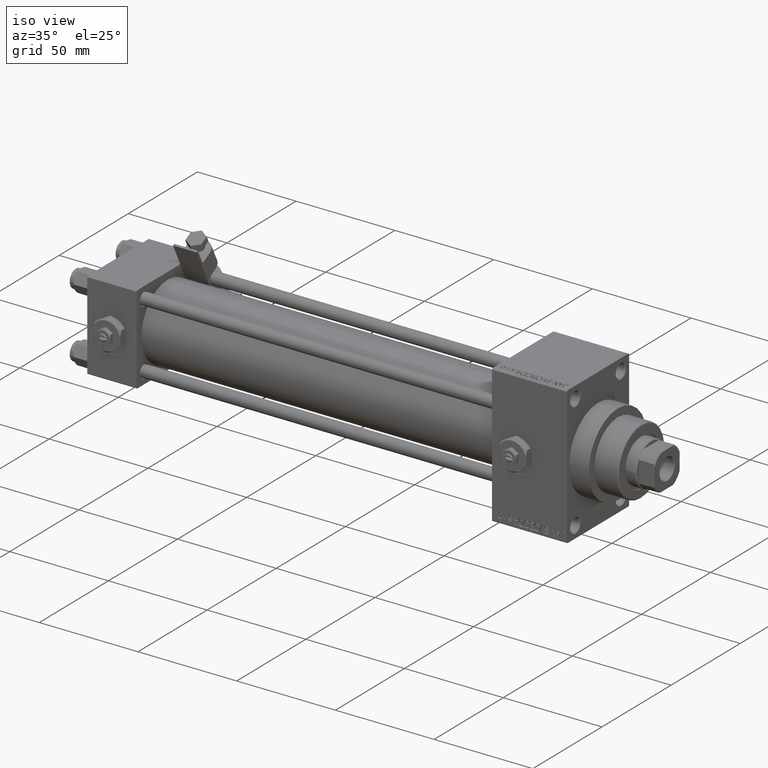
[diagram: clean part render]
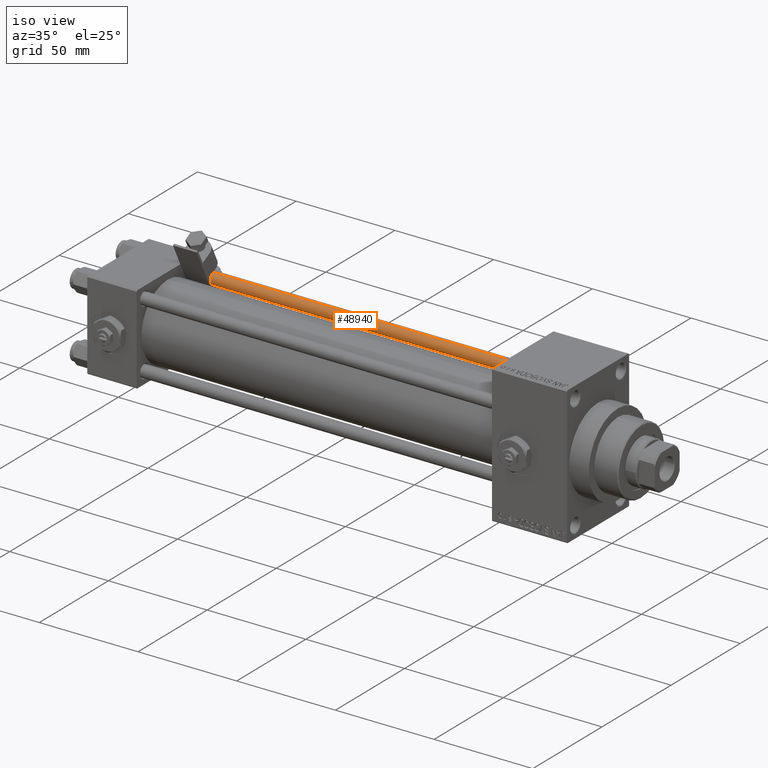
[diagram: same view with one face highlighted and labeled with its STEP entity id]
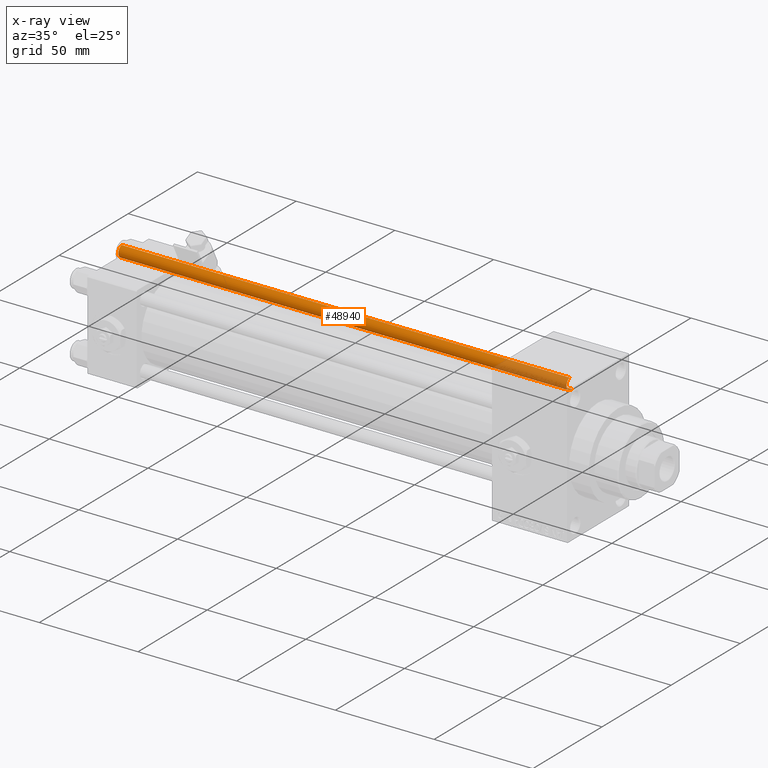
[diagram: x-ray of the same camera — body ghosted, the highlighted face saturated]
A machine part, iso view. The second image highlights one B-rep face of the part: STEP entity #48940.
The next image is the same camera in x-ray: the body ghosted, the highlighted face saturated — about 15% of this face is hidden behind the body in this view.
In plain terms, the highlighted cylindrical surface (edge-blend (fillet) strip) has radius 3 mm, axis along (-1, -0, 0).
Its self-contained STEP definition (entity closure, byte-faithful):
#1281 = CARTESIAN_POINT ( 'NONE',  ( 0.000000000000000000, 0.000000000000000000, 228.0000000000000000 ) ) ;
#1785 = DIRECTION ( 'NONE',  ( -0.000000000000000000, -0.000000000000000000, -1.000000000000000000 ) ) ;
#4986 = EDGE_CURVE ( 'NONE', #5074, #45860, #11930, .T. ) ;
#5074 = VERTEX_POINT ( 'NONE', #19017 ) ;
#8572 = EDGE_CURVE ( 'NONE', #10737, #45860, #24308, .T. ) ;
#9350 = VECTOR ( 'NONE', #41598, 1000.000000000000000 ) ;
#10737 = VERTEX_POINT ( 'NONE', #21495 ) ;
#10773 = CIRCLE ( 'NONE', #18866, 3.000000000000000444 ) ;
#10990 = EDGE_LOOP ( 'NONE', ( #18304, #18775, #12207, #15765 ) ) ;
#11537 = VECTOR ( 'NONE', #27370, 1000.000000000000000 ) ;
#11930 = LINE ( 'NONE', #49717, #11537 ) ;
#12176 = DIRECTION ( 'NONE',  ( 1.000000000000000000, 0.000000000000000000, 0.000000000000000000 ) ) ;
#12207 = ORIENTED_EDGE ( 'NONE', *, *, #27006, .T. ) ;
#13185 = DIRECTION ( 'NONE',  ( -1.000000000000000000, 0.000000000000000000, 0.000000000000000000 ) ) ;
#15483 = CARTESIAN_POINT ( 'NONE',  ( -3.000000000000000444, 0.000000000000000000, 228.0000000000000000 ) ) ;
#15765 = ORIENTED_EDGE ( 'NONE', *, *, #8572, .T. ) ;
#18304 = ORIENTED_EDGE ( 'NONE', *, *, #4986, .F. ) ;
#18511 = EDGE_CURVE ( 'NONE', #5074, #35881, #10773, .T. ) ;
#18775 = ORIENTED_EDGE ( 'NONE', *, *, #18511, .T. ) ;
#18866 = AXIS2_PLACEMENT_3D ( 'NONE', #35244, #34746, #12176 ) ;
#19017 = CARTESIAN_POINT ( 'NONE',  ( 3.000000000000000444, 3.673940397442059868E-16, 227.5000000000000853 ) ) ;
#21495 = CARTESIAN_POINT ( 'NONE',  ( -3.000000000000000444, 0.000000000000000000, 0.5000000000001114664 ) ) ;
#23782 = DIRECTION ( 'NONE',  ( 1.000000000000000000, 0.000000000000000000, 0.000000000000000000 ) ) ;
#24308 = CIRCLE ( 'NONE', #29159, 3.000000000000000444 ) ;
#27006 = EDGE_CURVE ( 'NONE', #35881, #10737, #42357, .T. ) ;
#27370 = DIRECTION ( 'NONE',  ( -0.000000000000000000, -0.000000000000000000, -1.000000000000000000 ) ) ;
#29159 = AXIS2_PLACEMENT_3D ( 'NONE', #49939, #47135, #23782 ) ;
#32695 = CYLINDRICAL_SURFACE ( 'NONE', #33095, 3.000000000000000444 ) ;
#33095 = AXIS2_PLACEMENT_3D ( 'NONE', #1281, #1785, #13185 ) ;
#34746 = DIRECTION ( 'NONE',  ( 0.000000000000000000, 0.000000000000000000, -1.000000000000000000 ) ) ;
#35244 = CARTESIAN_POINT ( 'NONE',  ( 0.000000000000000000, 0.000000000000000000, 227.5000000000000853 ) ) ;
#35881 = VERTEX_POINT ( 'NONE', #45650 ) ;
#36738 = FACE_OUTER_BOUND ( 'NONE', #10990, .T. ) ;
#41598 = DIRECTION ( 'NONE',  ( -0.000000000000000000, -0.000000000000000000, -1.000000000000000000 ) ) ;
#42357 = LINE ( 'NONE', #15483, #9350 ) ;
#43019 = CARTESIAN_POINT ( 'NONE',  ( 3.000000000000000444, 3.673940397442059868E-16, 0.5000000000001114664 ) ) ;
#45650 = CARTESIAN_POINT ( 'NONE',  ( -3.000000000000000444, 0.000000000000000000, 227.5000000000000853 ) ) ;
#45860 = VERTEX_POINT ( 'NONE', #43019 ) ;
#47135 = DIRECTION ( 'NONE',  ( -0.000000000000000000, -0.000000000000000000, 1.000000000000000000 ) ) ;
#48940 = ADVANCED_FACE ( 'NONE', ( #36738 ), #32695, .T. ) ;
#49717 = CARTESIAN_POINT ( 'NONE',  ( 3.000000000000000444, 3.673940397442059868E-16, 228.0000000000000000 ) ) ;
#49939 = CARTESIAN_POINT ( 'NONE',  ( 0.000000000000000000, 0.000000000000000000, 0.5000000000001114664 ) ) ;